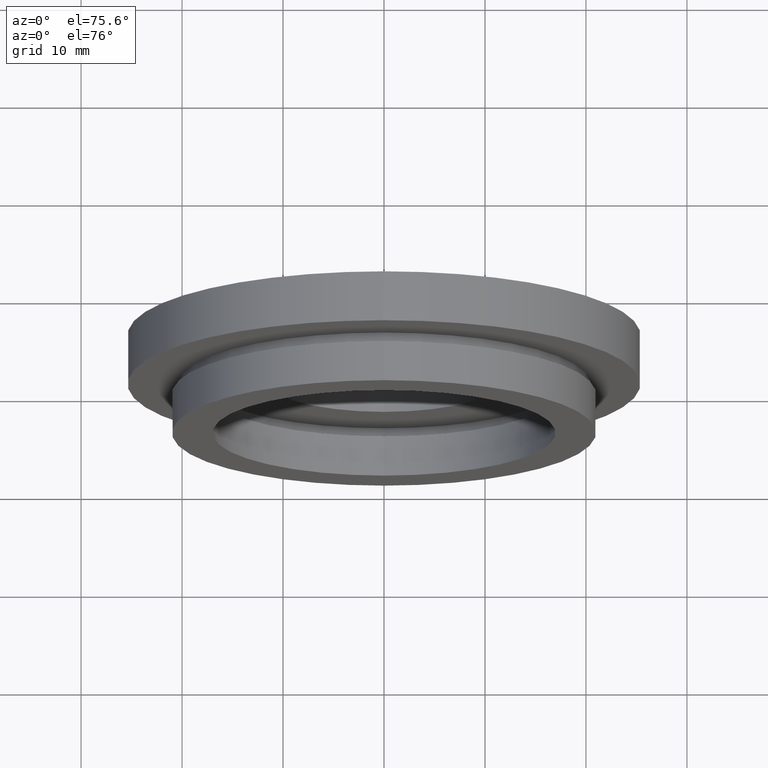
[diagram: clean part render]
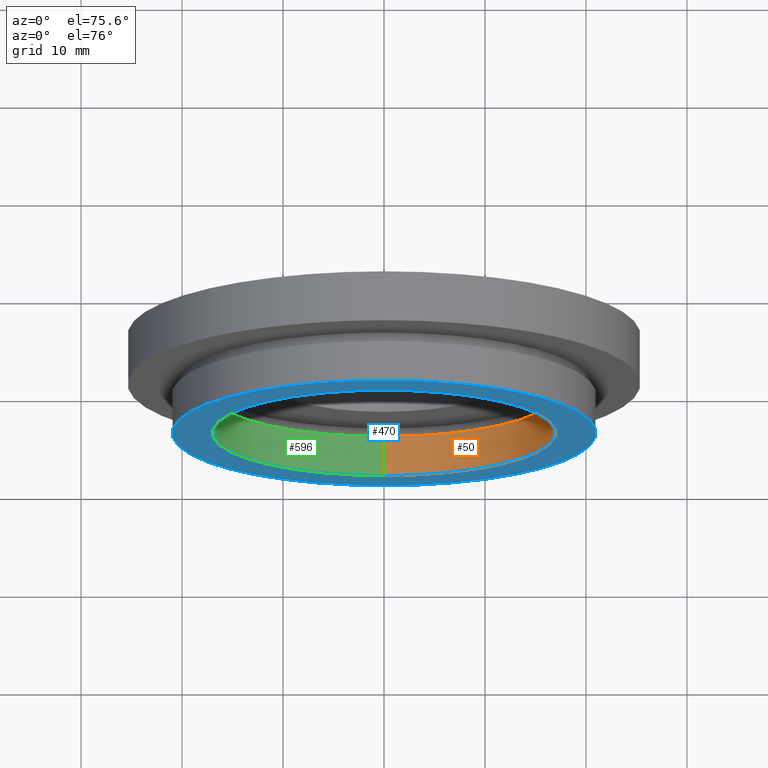
[diagram: same view with three faces highlighted in distinct colors, each labeled with its STEP entity id]
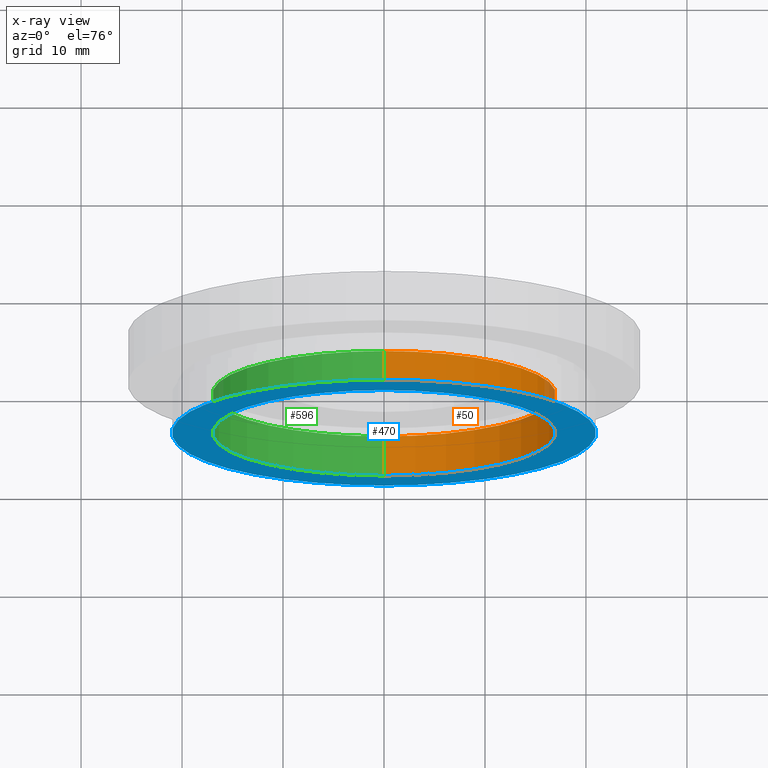
[diagram: x-ray of the same camera — body ghosted, the three highlighted faces saturated]
A machine part, auxiliary view with three faces highlighted in distinct colors.
The next image is the same camera in x-ray (body ghosted, the three faces saturated) — at least one of them is partly hidden behind the body in this view.
Their STEP definitions:

[orange] entity #50 — the highlighted cylindrical surface (partial cylindrical patch) has radius 17 mm, axis along (-0, 1, -0).
#3 = EDGE_CURVE ( 'NONE', #600, #511, #496, .T. ) ;
#7 = CIRCLE ( 'NONE', #510, 17.00000000000000400 ) ;
#13 = CARTESIAN_POINT ( 'NONE',  ( 0.0000000000000000000, 0.0000000000000000000, 0.0000000000000000000 ) ) ;
#18 = DIRECTION ( 'NONE',  ( -0.0000000000000000000, 1.000000000000000000, -0.0000000000000000000 ) ) ;
#23 = ORIENTED_EDGE ( 'NONE', *, *, #3, .F. ) ;
#32 = CARTESIAN_POINT ( 'NONE',  ( 0.0000000000000000000, 17.41929831819392000, 17.00000000000000400 ) ) ;
#33 = AXIS2_PLACEMENT_3D ( 'NONE', #13, #18, #159 ) ;
#41 = DIRECTION ( 'NONE',  ( -0.0000000000000000000, 1.000000000000000000, -0.0000000000000000000 ) ) ;
#50 = ADVANCED_FACE ( 'NONE', ( #519 ), #375, .F. ) ;
#73 = CARTESIAN_POINT ( 'NONE',  ( 0.0000000000000000000, 4.000000000000000000, 17.00000000000000400 ) ) ;
#97 = CIRCLE ( 'NONE', #33, 17.00000000000000400 ) ;
#146 = ORIENTED_EDGE ( 'NONE', *, *, #385, .T. ) ;
#159 = DIRECTION ( 'NONE',  ( 0.0000000000000000000, 0.0000000000000000000, 1.000000000000000000 ) ) ;
#192 = DIRECTION ( 'NONE',  ( -0.0000000000000000000, 1.000000000000000000, -0.0000000000000000000 ) ) ;
#219 = CARTESIAN_POINT ( 'NONE',  ( 2.081899558550500700E-015, 17.41929831819392000, -17.00000000000000400 ) ) ;
#221 = DIRECTION ( 'NONE',  ( -0.0000000000000000000, 1.000000000000000000, -0.0000000000000000000 ) ) ;
#235 = CARTESIAN_POINT ( 'NONE',  ( 0.0000000000000000000, 17.41929831819392000, 0.0000000000000000000 ) ) ;
#255 = VECTOR ( 'NONE', #41, 1000.000000000000000 ) ;
#275 = ORIENTED_EDGE ( 'NONE', *, *, #618, .F. ) ;
#279 = DIRECTION ( 'NONE',  ( 0.0000000000000000000, 0.0000000000000000000, 1.000000000000000000 ) ) ;
#284 = ORIENTED_EDGE ( 'NONE', *, *, #350, .T. ) ;
#310 = VERTEX_POINT ( 'NONE', #73 ) ;
#343 = CARTESIAN_POINT ( 'NONE',  ( 2.081899558550500700E-015, 0.0000000000000000000, -17.00000000000000400 ) ) ;
#350 = EDGE_CURVE ( 'NONE', #476, #310, #579, .T. ) ;
#361 = VECTOR ( 'NONE', #221, 1000.000000000000000 ) ;
#375 = CYLINDRICAL_SURFACE ( 'NONE', #390, 17.00000000000000400 ) ;
#385 = EDGE_CURVE ( 'NONE', #310, #511, #7, .T. ) ;
#390 = AXIS2_PLACEMENT_3D ( 'NONE', #235, #192, #279 ) ;
#418 = CARTESIAN_POINT ( 'NONE',  ( 0.0000000000000000000, 0.0000000000000000000, 17.00000000000000400 ) ) ;
#446 = EDGE_LOOP ( 'NONE', ( #23, #275, #284, #146 ) ) ;
#476 = VERTEX_POINT ( 'NONE', #418 ) ;
#496 = LINE ( 'NONE', #219, #361 ) ;
#506 = CARTESIAN_POINT ( 'NONE',  ( 2.081899558550500700E-015, 4.000000000000000000, -17.00000000000000400 ) ) ;
#510 = AXIS2_PLACEMENT_3D ( 'NONE', #546, #564, #562 ) ;
#511 = VERTEX_POINT ( 'NONE', #506 ) ;
#519 = FACE_OUTER_BOUND ( 'NONE', #446, .T. ) ;
#546 = CARTESIAN_POINT ( 'NONE',  ( 0.0000000000000000000, 4.000000000000000000, 0.0000000000000000000 ) ) ;
#562 = DIRECTION ( 'NONE',  ( 0.0000000000000000000, 0.0000000000000000000, 1.000000000000000000 ) ) ;
#564 = DIRECTION ( 'NONE',  ( -0.0000000000000000000, 1.000000000000000000, -0.0000000000000000000 ) ) ;
#579 = LINE ( 'NONE', #32, #255 ) ;
#600 = VERTEX_POINT ( 'NONE', #343 ) ;
#618 = EDGE_CURVE ( 'NONE', #476, #600, #97, .T. ) ;

[blue] entity #470 — the highlighted planar face has unit normal (-0, 1, 0).
#2 = ORIENTED_EDGE ( 'NONE', *, *, #193, .T. ) ;
#13 = CARTESIAN_POINT ( 'NONE',  ( 0.0000000000000000000, 0.0000000000000000000, 0.0000000000000000000 ) ) ;
#18 = DIRECTION ( 'NONE',  ( -0.0000000000000000000, 1.000000000000000000, -0.0000000000000000000 ) ) ;
#26 = VERTEX_POINT ( 'NONE', #201 ) ;
#30 = EDGE_CURVE ( 'NONE', #26, #450, #603, .T. ) ;
#33 = AXIS2_PLACEMENT_3D ( 'NONE', #13, #18, #159 ) ;
#91 = CARTESIAN_POINT ( 'NONE',  ( 0.0000000000000000000, 0.0000000000000000000, 21.00000000000000400 ) ) ;
#97 = CIRCLE ( 'NONE', #33, 17.00000000000000400 ) ;
#99 = FACE_BOUND ( 'NONE', #311, .T. ) ;
#156 = CARTESIAN_POINT ( 'NONE',  ( 0.0000000000000000000, 0.0000000000000000000, 0.0000000000000000000 ) ) ;
#159 = DIRECTION ( 'NONE',  ( 0.0000000000000000000, 0.0000000000000000000, 1.000000000000000000 ) ) ;
#161 = ORIENTED_EDGE ( 'NONE', *, *, #532, .F. ) ;
#189 = CARTESIAN_POINT ( 'NONE',  ( 0.0000000000000000000, 0.0000000000000000000, 0.0000000000000000000 ) ) ;
#193 = EDGE_CURVE ( 'NONE', #600, #476, #424, .T. ) ;
#201 = CARTESIAN_POINT ( 'NONE',  ( 2.571758278209442100E-015, 0.0000000000000000000, -21.00000000000000400 ) ) ;
#217 = FACE_OUTER_BOUND ( 'NONE', #232, .T. ) ;
#226 = DIRECTION ( 'NONE',  ( 0.0000000000000000000, 0.0000000000000000000, 1.000000000000000000 ) ) ;
#232 = EDGE_LOOP ( 'NONE', ( #161, #412 ) ) ;
#239 = DIRECTION ( 'NONE',  ( -0.0000000000000000000, 1.000000000000000000, -0.0000000000000000000 ) ) ;
#311 = EDGE_LOOP ( 'NONE', ( #454, #2 ) ) ;
#337 = AXIS2_PLACEMENT_3D ( 'NONE', #404, #458, #547 ) ;
#343 = CARTESIAN_POINT ( 'NONE',  ( 2.081899558550500700E-015, 0.0000000000000000000, -17.00000000000000400 ) ) ;
#371 = DIRECTION ( 'NONE',  ( 0.0000000000000000000, 0.0000000000000000000, 1.000000000000000000 ) ) ;
#380 = CARTESIAN_POINT ( 'NONE',  ( 17.00000000000000400, 0.0000000000000000000, 0.0000000000000000000 ) ) ;
#404 = CARTESIAN_POINT ( 'NONE',  ( 0.0000000000000000000, 0.0000000000000000000, 0.0000000000000000000 ) ) ;
#405 = DIRECTION ( 'NONE',  ( -0.0000000000000000000, 1.000000000000000000, 0.0000000000000000000 ) ) ;
#412 = ORIENTED_EDGE ( 'NONE', *, *, #30, .F. ) ;
#418 = CARTESIAN_POINT ( 'NONE',  ( 0.0000000000000000000, 0.0000000000000000000, 17.00000000000000400 ) ) ;
#419 = AXIS2_PLACEMENT_3D ( 'NONE', #189, #507, #512 ) ;
#424 = CIRCLE ( 'NONE', #568, 17.00000000000000400 ) ;
#450 = VERTEX_POINT ( 'NONE', #91 ) ;
#454 = ORIENTED_EDGE ( 'NONE', *, *, #618, .T. ) ;
#458 = DIRECTION ( 'NONE',  ( -0.0000000000000000000, 1.000000000000000000, -0.0000000000000000000 ) ) ;
#459 = CIRCLE ( 'NONE', #337, 21.00000000000000400 ) ;
#470 = ADVANCED_FACE ( 'NONE', ( #217, #99 ), #524, .F. ) ;
#476 = VERTEX_POINT ( 'NONE', #418 ) ;
#507 = DIRECTION ( 'NONE',  ( -0.0000000000000000000, 1.000000000000000000, -0.0000000000000000000 ) ) ;
#512 = DIRECTION ( 'NONE',  ( 0.0000000000000000000, 0.0000000000000000000, 1.000000000000000000 ) ) ;
#513 = AXIS2_PLACEMENT_3D ( 'NONE', #380, #405, #371 ) ;
#524 = PLANE ( 'NONE',  #513 ) ;
#532 = EDGE_CURVE ( 'NONE', #450, #26, #459, .T. ) ;
#547 = DIRECTION ( 'NONE',  ( 0.0000000000000000000, 0.0000000000000000000, 1.000000000000000000 ) ) ;
#568 = AXIS2_PLACEMENT_3D ( 'NONE', #156, #239, #226 ) ;
#600 = VERTEX_POINT ( 'NONE', #343 ) ;
#603 = CIRCLE ( 'NONE', #419, 21.00000000000000400 ) ;
#618 = EDGE_CURVE ( 'NONE', #476, #600, #97, .T. ) ;

[green] entity #596 — the highlighted cylindrical surface (partial cylindrical patch) has radius 17 mm, axis along (-0, 1, -0).
#3 = EDGE_CURVE ( 'NONE', #600, #511, #496, .T. ) ;
#32 = CARTESIAN_POINT ( 'NONE',  ( 0.0000000000000000000, 17.41929831819392000, 17.00000000000000400 ) ) ;
#41 = DIRECTION ( 'NONE',  ( -0.0000000000000000000, 1.000000000000000000, -0.0000000000000000000 ) ) ;
#53 = EDGE_CURVE ( 'NONE', #511, #310, #622, .T. ) ;
#73 = CARTESIAN_POINT ( 'NONE',  ( 0.0000000000000000000, 4.000000000000000000, 17.00000000000000400 ) ) ;
#81 = DIRECTION ( 'NONE',  ( -0.0000000000000000000, 1.000000000000000000, -0.0000000000000000000 ) ) ;
#112 = ORIENTED_EDGE ( 'NONE', *, *, #350, .F. ) ;
#156 = CARTESIAN_POINT ( 'NONE',  ( 0.0000000000000000000, 0.0000000000000000000, 0.0000000000000000000 ) ) ;
#193 = EDGE_CURVE ( 'NONE', #600, #476, #424, .T. ) ;
#206 = AXIS2_PLACEMENT_3D ( 'NONE', #393, #81, #598 ) ;
#219 = CARTESIAN_POINT ( 'NONE',  ( 2.081899558550500700E-015, 17.41929831819392000, -17.00000000000000400 ) ) ;
#221 = DIRECTION ( 'NONE',  ( -0.0000000000000000000, 1.000000000000000000, -0.0000000000000000000 ) ) ;
#226 = DIRECTION ( 'NONE',  ( 0.0000000000000000000, 0.0000000000000000000, 1.000000000000000000 ) ) ;
#239 = DIRECTION ( 'NONE',  ( -0.0000000000000000000, 1.000000000000000000, -0.0000000000000000000 ) ) ;
#241 = CYLINDRICAL_SURFACE ( 'NONE', #206, 17.00000000000000400 ) ;
#254 = FACE_OUTER_BOUND ( 'NONE', #353, .T. ) ;
#255 = VECTOR ( 'NONE', #41, 1000.000000000000000 ) ;
#262 = ORIENTED_EDGE ( 'NONE', *, *, #3, .T. ) ;
#310 = VERTEX_POINT ( 'NONE', #73 ) ;
#343 = CARTESIAN_POINT ( 'NONE',  ( 2.081899558550500700E-015, 0.0000000000000000000, -17.00000000000000400 ) ) ;
#347 = ORIENTED_EDGE ( 'NONE', *, *, #193, .F. ) ;
#350 = EDGE_CURVE ( 'NONE', #476, #310, #579, .T. ) ;
#353 = EDGE_LOOP ( 'NONE', ( #347, #262, #509, #112 ) ) ;
#356 = AXIS2_PLACEMENT_3D ( 'NONE', #514, #366, #362 ) ;
#361 = VECTOR ( 'NONE', #221, 1000.000000000000000 ) ;
#362 = DIRECTION ( 'NONE',  ( 0.0000000000000000000, 0.0000000000000000000, 1.000000000000000000 ) ) ;
#366 = DIRECTION ( 'NONE',  ( -0.0000000000000000000, 1.000000000000000000, -0.0000000000000000000 ) ) ;
#393 = CARTESIAN_POINT ( 'NONE',  ( 0.0000000000000000000, 17.41929831819392000, 0.0000000000000000000 ) ) ;
#418 = CARTESIAN_POINT ( 'NONE',  ( 0.0000000000000000000, 0.0000000000000000000, 17.00000000000000400 ) ) ;
#424 = CIRCLE ( 'NONE', #568, 17.00000000000000400 ) ;
#476 = VERTEX_POINT ( 'NONE', #418 ) ;
#496 = LINE ( 'NONE', #219, #361 ) ;
#506 = CARTESIAN_POINT ( 'NONE',  ( 2.081899558550500700E-015, 4.000000000000000000, -17.00000000000000400 ) ) ;
#509 = ORIENTED_EDGE ( 'NONE', *, *, #53, .T. ) ;
#511 = VERTEX_POINT ( 'NONE', #506 ) ;
#514 = CARTESIAN_POINT ( 'NONE',  ( 0.0000000000000000000, 4.000000000000000000, 0.0000000000000000000 ) ) ;
#568 = AXIS2_PLACEMENT_3D ( 'NONE', #156, #239, #226 ) ;
#579 = LINE ( 'NONE', #32, #255 ) ;
#596 = ADVANCED_FACE ( 'NONE', ( #254 ), #241, .F. ) ;
#598 = DIRECTION ( 'NONE',  ( 0.0000000000000000000, 0.0000000000000000000, 1.000000000000000000 ) ) ;
#600 = VERTEX_POINT ( 'NONE', #343 ) ;
#622 = CIRCLE ( 'NONE', #356, 17.00000000000000400 ) ;